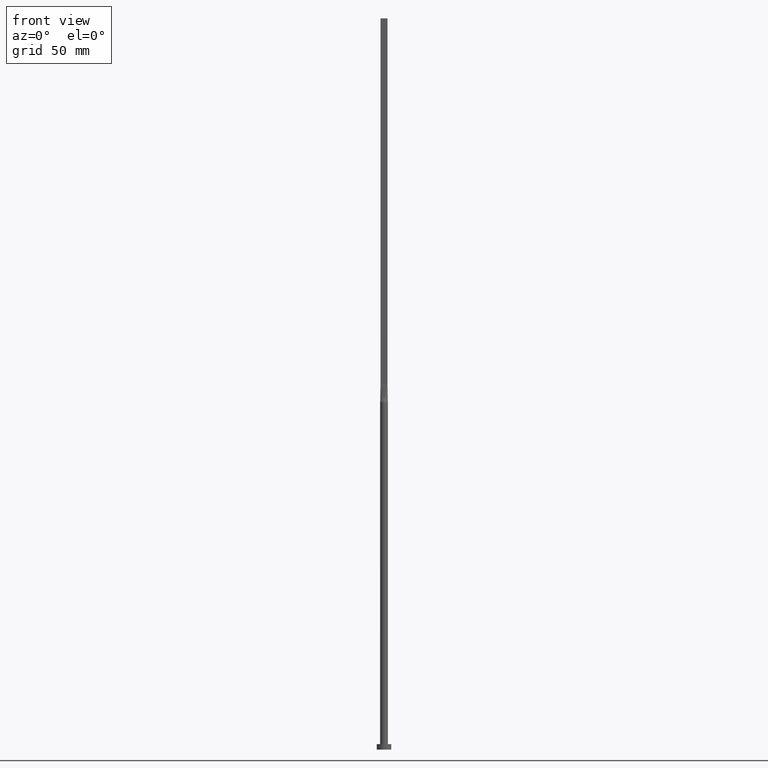
[diagram: clean part render]
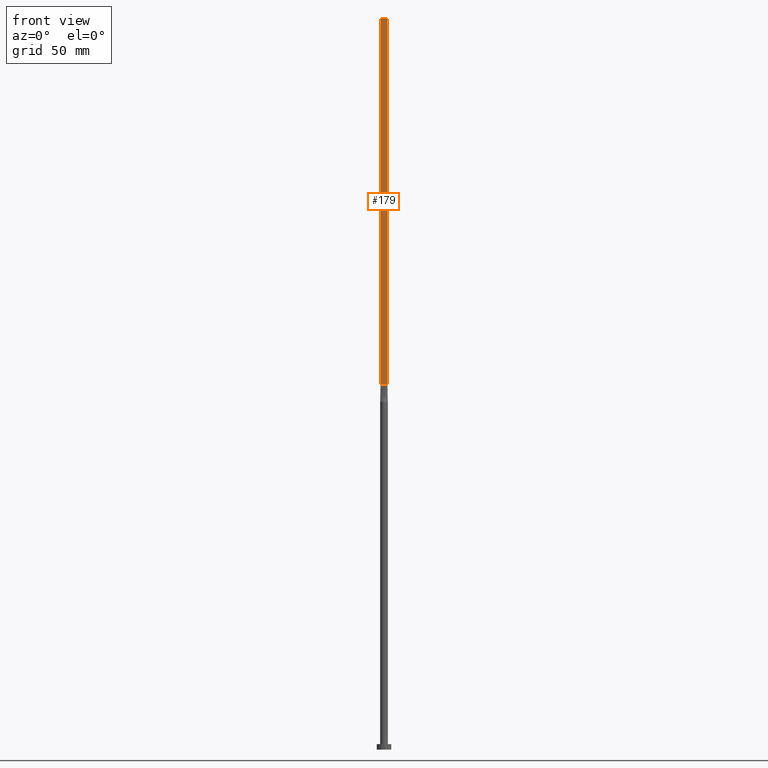
[diagram: same view with one face highlighted and labeled with its STEP entity id]
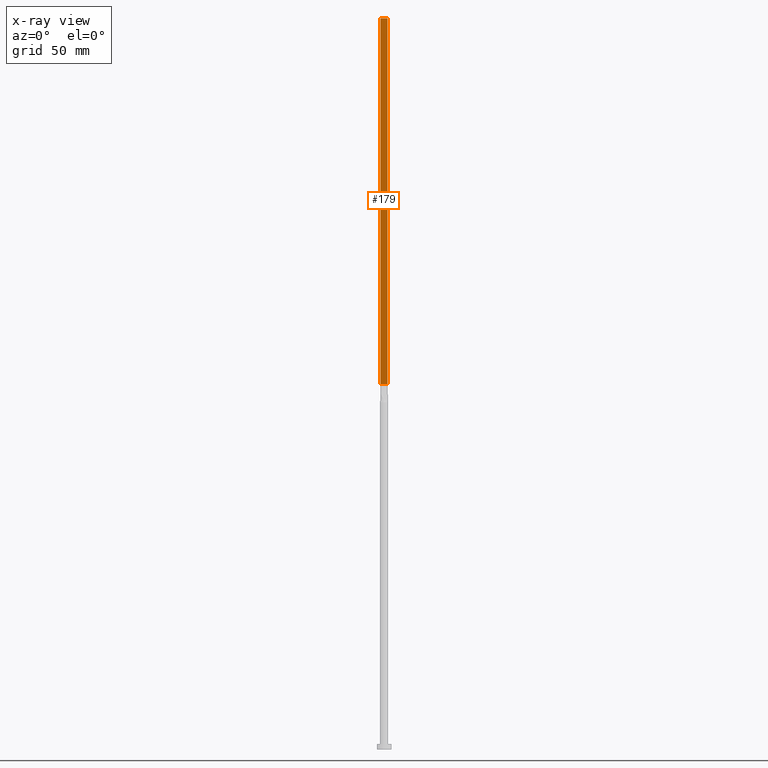
[diagram: x-ray of the same camera — body ghosted, the highlighted face saturated]
A machine part, front view. The second image highlights one B-rep face of the part: STEP entity #179.
The next image is the same camera in x-ray: the body ghosted, the highlighted face saturated — about 0% of this face is hidden behind the body in this view.
In plain terms, the highlighted planar face has unit normal (0, 1, -0).
Its self-contained STEP definition (entity closure, byte-faithful):
#10 = EDGE_LOOP ( 'NONE', ( #75, #365, #457, #434 ) ) ;
#20 = CARTESIAN_POINT ( 'NONE',  ( -1.899999999999999911, -0.5999999999999995337, 400.0000000000000000 ) ) ;
#21 = EDGE_CURVE ( 'NONE', #563, #323, #461, .T. ) ;
#22 = FACE_OUTER_BOUND ( 'NONE', #10, .T. ) ;
#23 = DIRECTION ( 'NONE',  ( 5.706327223607920020E-17, 1.000000000000000000, -0.000000000000000000 ) ) ;
#26 = PLANE ( 'NONE',  #522 ) ;
#43 = LINE ( 'NONE', #215, #476 ) ;
#59 = CARTESIAN_POINT ( 'NONE',  ( -1.899999999999999911, -0.5999999999999995337, 200.0000000000000000 ) ) ;
#75 = ORIENTED_EDGE ( 'NONE', *, *, #21, .T. ) ;
#91 = DIRECTION ( 'NONE',  ( 1.000000000000000000, -5.706327223607918787E-17, 0.000000000000000000 ) ) ;
#96 = VERTEX_POINT ( 'NONE', #20 ) ;
#99 = EDGE_CURVE ( 'NONE', #96, #563, #405, .T. ) ;
#135 = CARTESIAN_POINT ( 'NONE',  ( -1.899999999999999911, -0.5999999999999995337, 400.0000000000000000 ) ) ;
#175 = CARTESIAN_POINT ( 'NONE',  ( -1.899999999999999911, -0.5999999999999995337, 200.0000000000000000 ) ) ;
#179 = ADVANCED_FACE ( 'NONE', ( #22 ), #26, .F. ) ;
#198 = EDGE_CURVE ( 'NONE', #96, #442, #293, .T. ) ;
#215 = CARTESIAN_POINT ( 'NONE',  ( 1.899999999999999023, -0.5999999999999997558, 400.0000000000000000 ) ) ;
#223 = DIRECTION ( 'NONE',  ( -0.000000000000000000, -0.000000000000000000, -1.000000000000000000 ) ) ;
#243 = CARTESIAN_POINT ( 'NONE',  ( -1.899999999999999911, -0.5999999999999995337, 400.0000000000000000 ) ) ;
#271 = CARTESIAN_POINT ( 'NONE',  ( 1.899999999999999023, -0.5999999999999997558, 400.0000000000000000 ) ) ;
#276 = VECTOR ( 'NONE', #382, 1000.000000000000000 ) ;
#290 = EDGE_CURVE ( 'NONE', #442, #323, #43, .T. ) ;
#293 = LINE ( 'NONE', #481, #276 ) ;
#323 = VERTEX_POINT ( 'NONE', #569 ) ;
#345 = VECTOR ( 'NONE', #223, 1000.000000000000000 ) ;
#363 = VECTOR ( 'NONE', #91, 1000.000000000000000 ) ;
#365 = ORIENTED_EDGE ( 'NONE', *, *, #290, .F. ) ;
#379 = DIRECTION ( 'NONE',  ( -1.000000000000000000, 5.706327223607920020E-17, 0.000000000000000000 ) ) ;
#382 = DIRECTION ( 'NONE',  ( 1.000000000000000000, -5.706327223607920020E-17, 0.000000000000000000 ) ) ;
#405 = LINE ( 'NONE', #135, #345 ) ;
#434 = ORIENTED_EDGE ( 'NONE', *, *, #99, .T. ) ;
#442 = VERTEX_POINT ( 'NONE', #271 ) ;
#457 = ORIENTED_EDGE ( 'NONE', *, *, #198, .F. ) ;
#461 = LINE ( 'NONE', #59, #363 ) ;
#476 = VECTOR ( 'NONE', #537, 1000.000000000000000 ) ;
#481 = CARTESIAN_POINT ( 'NONE',  ( -1.899999999999999911, -0.5999999999999995337, 400.0000000000000000 ) ) ;
#522 = AXIS2_PLACEMENT_3D ( 'NONE', #243, #23, #379 ) ;
#537 = DIRECTION ( 'NONE',  ( -0.000000000000000000, -0.000000000000000000, -1.000000000000000000 ) ) ;
#563 = VERTEX_POINT ( 'NONE', #175 ) ;
#569 = CARTESIAN_POINT ( 'NONE',  ( 1.899999999999999023, -0.5999999999999997558, 200.0000000000000000 ) ) ;